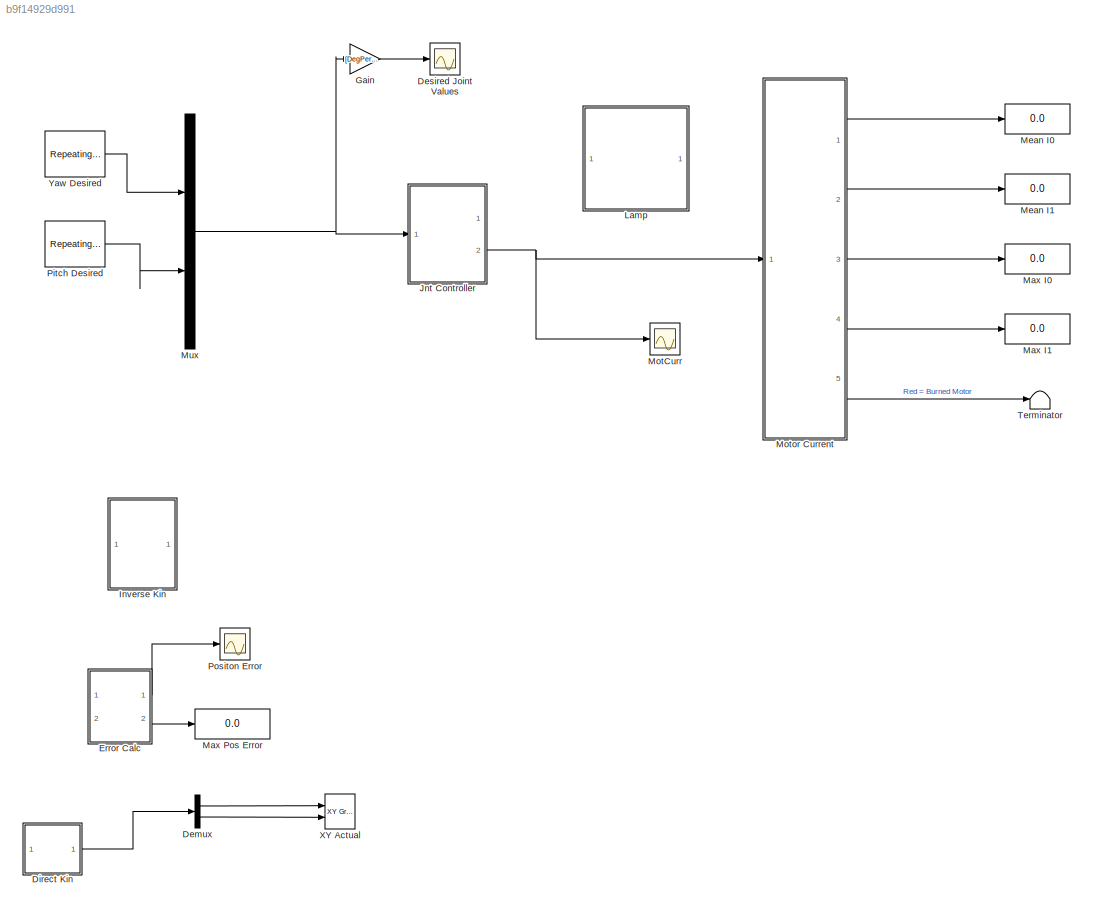
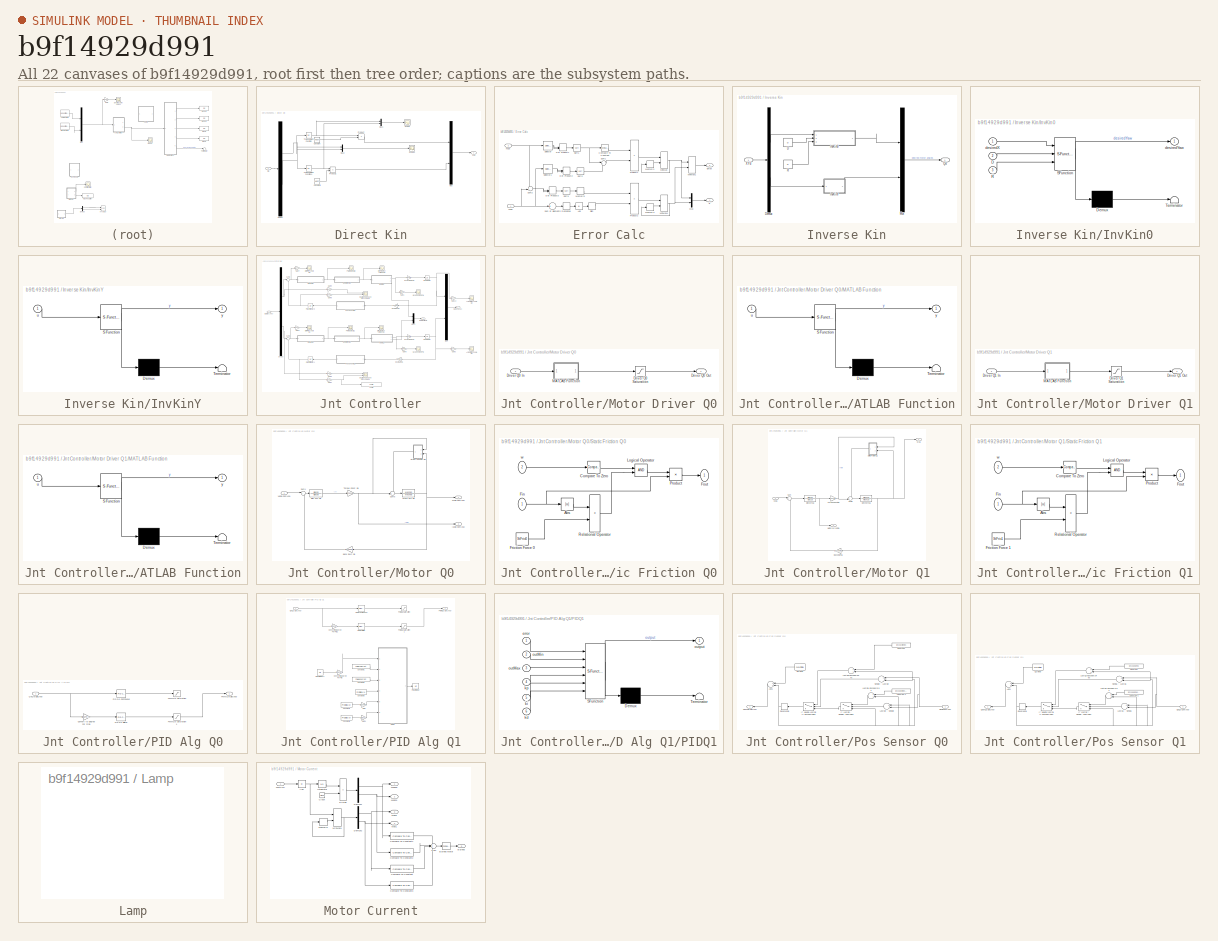
[diagram: thumbnail index - all 22 canvases of the model, root first then tree order]
MODEL slx_b9f14929d991
KIND model
CONFIG AbsTol = auto
CONFIG EnableMultiTasking = on
CONFIG FixedStep = 1e-5
CONFIG InitFcn = CONSTANTS\nDEFAULT\nSystem\nControl
CONFIG MaxStep = 1e-5
CONFIG MinStep = auto
CONFIG PreLoadFcn = CONSTANTS\nDEFAULT\nSystem\nControl
CONFIG RelTol = 1e-3
CONFIG SampleTimeConstraint = Unconstrained
CONFIG Solver = ode45
CONFIG SolverName = ode45
CONFIG StartTime = 0.0
CONFIG StopTime = 5
BLOCK [Demux] Demux
  Commented = on
  DisplayOption = bar
  Outputs = 2
  Ports = [1, 2]
BLOCK [Scope] Desired Joint Values
  NumInputPorts = 1
  Ports = [1]
  ScopeSpecificationString = Simulink.scopes.TimeScopeBlockCfg('CurrentConfiguration', extmgr.ConfigurationSet(extmgr.Configuration('Core','General UI',true),extmgr.Configuration('Core','Source UI',true),extmgr.Configuration('Sources','WiredSimulink',true,'DataLoggingVariableName','ScopeData1','DataLoggingLimitDataPoints',true,'DataLoggingSaveFormat','Array','DataLoggingDecimation','1','DataLoggingDecimateData',true),extmgr.C...<+1747ch>
BLOCK [SubSystem] Direct Kin
  Commented = on
  Ports = [1, 1]
  RequestExecContextInheritance = off
  Variant = off
BLOCK [Constant] Direct Kin/Constant
  Value = Height
BLOCK [Constant] Direct Kin/Constant1
  Value = Height
BLOCK [Demux] Direct Kin/Demux
  DisplayOption = bar
  Outputs = 2
  Ports = [1, 2]
BLOCK [Mux] Direct Kin/Mux
  DisplayOption = bar
  Inputs = 2
  Ports = [2, 1]
BLOCK [Mux] Direct Kin/Mux1
  DisplayOption = bar
  Inputs = 2
  Ports = [2, 1]
BLOCK [Mux] Direct Kin/Mux2
  DisplayOption = bar
  Inputs = 2
  Ports = [2, 1]
BLOCK [Product] Direct Kin/Product
  InputSameDT = off
  OutDataTypeStr = Inherit: Inherit via internal rule
  Ports = [2, 1]
  RndMeth = Floor
  SaturateOnIntegerOverflow = off
BLOCK [Product] Direct Kin/Product1
  InputSameDT = off
  OutDataTypeStr = Inherit: Inherit via internal rule
  Ports = [2, 1]
  RndMeth = Floor
  SaturateOnIntegerOverflow = off
BLOCK [Inport] Direct Kin/Qa
  IconDisplay = Port number
BLOCK [Scope] Direct Kin/Scope
  NumInputPorts = 1
  Ports = [1]
  ScopeSpecificationString = Simulink.scopes.TimeScopeBlockCfg('CurrentConfiguration', extmgr.ConfigurationSet(extmgr.Configuration('Core','General UI',true),extmgr.Configuration('Core','Source UI',true),extmgr.Configuration('Sources','WiredSimulink',true,'DataLoggingVariableName','ScopeData1'),extmgr.Configuration('Visuals','Time Domain',true,'SerializedDisplays',{struct('MinYLimReal','-0.84789','MaxYLimReal','0.09421','YLab...<+1433ch>
BLOCK [Scope] Direct Kin/Scope1
  NumInputPorts = 1
  Ports = [1]
  ScopeSpecificationString = Simulink.scopes.TimeScopeBlockCfg('CurrentConfiguration', extmgr.ConfigurationSet(extmgr.Configuration('Core','General UI',true),extmgr.Configuration('Core','Source UI',true),extmgr.Configuration('Sources','WiredSimulink',true,'DataLoggingVariableName','ScopeData3'),extmgr.Configuration('Visuals','Time Domain',true,'SerializedDisplays',{struct('MinYLimReal','-0.72658','MaxYLimReal','0.08073','YLab...<+1402ch>
BLOCK [Trigonometry] Direct Kin/Trigonometric Function
  Operator = tan
  Ports = [1, 1]
BLOCK [Trigonometry] Direct Kin/Trigonometric Function1
  Operator = tan
  Ports = [1, 1]
BLOCK [Outport] Direct Kin/XYa
  IconDisplay = Port number
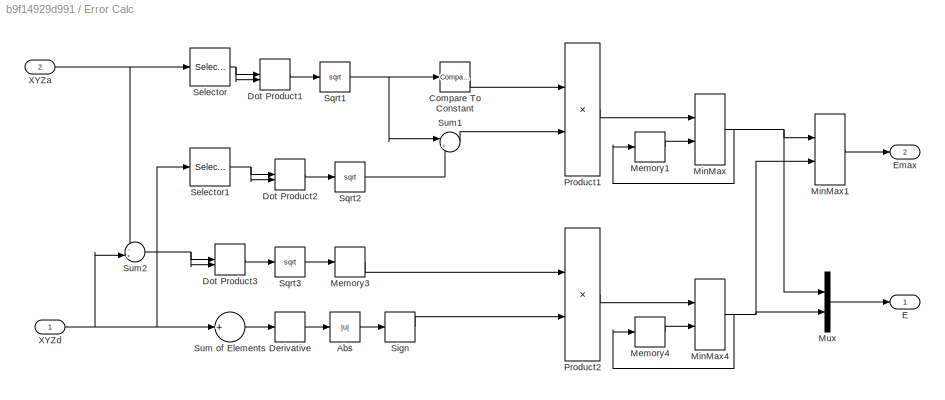
BLOCK [SubSystem] Error Calc
  Commented = on
  Ports = [2, 2]
  RequestExecContextInheritance = off
  Variant = off
BLOCK [Abs] Error Calc/Abs
  SaturateOnIntegerOverflow = off
BLOCK [Reference] Error Calc/Compare To Constant  REF=simulink/Logic and Bit
Operations/Compare
To Constant
  Ports = [1, 1]
  SourceBlock = simulink/Logic and Bit\nOperations/Compare\nTo Constant
  SourceProductBaseCode = SL
  SourceProductName = Simulink
  SourceType = Compare To Constant
BLOCK [Derivative] Error Calc/Derivative
BLOCK [DotProduct] Error Calc/Dot Product1
  OutDataTypeStr = Inherit: Inherit via internal rule
BLOCK [DotProduct] Error Calc/Dot Product2
  OutDataTypeStr = Inherit: Inherit via internal rule
BLOCK [DotProduct] Error Calc/Dot Product3
  OutDataTypeStr = Inherit: Inherit via internal rule
BLOCK [Outport] Error Calc/E
  IconDisplay = Port number
BLOCK [Outport] Error Calc/Emax
  IconDisplay = Port number
  Port = 2
BLOCK [Memory] Error Calc/Memory1
BLOCK [Memory] Error Calc/Memory3
BLOCK [Memory] Error Calc/Memory4
BLOCK [MinMax] Error Calc/MinMax
  Function = max
  InputSameDT = off
  Inputs = 2
  Ports = [2, 1]
  SaturateOnIntegerOverflow = off
BLOCK [MinMax] Error Calc/MinMax1
  Function = max
  InputSameDT = off
  Inputs = 2
  Ports = [2, 1]
  SaturateOnIntegerOverflow = off
BLOCK [MinMax] Error Calc/MinMax4
  Function = max
  InputSameDT = off
  Inputs = 2
  Ports = [2, 1]
  SaturateOnIntegerOverflow = off
BLOCK [Mux] Error Calc/Mux
  DisplayOption = bar
  Inputs = 2
  Ports = [2, 1]
BLOCK [Product] Error Calc/Product1
  InputSameDT = off
  OutDataTypeStr = Inherit: Inherit via internal rule
  Ports = [2, 1]
  RndMeth = Floor
  SaturateOnIntegerOverflow = off
BLOCK [Product] Error Calc/Product2
  InputSameDT = off
  OutDataTypeStr = Inherit: Inherit via internal rule
  Ports = [2, 1]
  RndMeth = Floor
  SaturateOnIntegerOverflow = off
BLOCK [Selector] Error Calc/Selector
  IndexOptions = Index vector (dialog)
  Indices = [1 2]
  InputPortWidth = 2
  OutputSizes = 1
  Ports = [1, 1]
BLOCK [Selector] Error Calc/Selector1
  IndexOptions = Index vector (dialog)
  Indices = [1 2]
  InputPortWidth = 2
  OutputSizes = 1
  Ports = [1, 1]
BLOCK [Signum] Error Calc/Sign
BLOCK [Sqrt] Error Calc/Sqrt1
BLOCK [Sqrt] Error Calc/Sqrt2
BLOCK [Sqrt] Error Calc/Sqrt3
BLOCK [Sum] Error Calc/Sum of Elements
  InputSameDT = off
  Inputs = +
  OutDataTypeStr = Inherit: Inherit via internal rule
  Ports = [1, 1]
  SaturateOnIntegerOverflow = off
BLOCK [Sum] Error Calc/Sum1
  IconShape = round
  InputSameDT = off
  Inputs = |+-
  OutDataTypeStr = Inherit: Inherit via internal rule
  Ports = [2, 1]
  SaturateOnIntegerOverflow = off
BLOCK [Sum] Error Calc/Sum2
  IconShape = round
  InputSameDT = off
  Inputs = -+|
  OutDataTypeStr = Inherit: Inherit via internal rule
  Ports = [2, 1]
  SaturateOnIntegerOverflow = off
BLOCK [Inport] Error Calc/XYZa
  IconDisplay = Port number
  Port = 2
BLOCK [Inport] Error Calc/XYZd
  IconDisplay = Port number
BLOCK [Gain] Gain
  Gain = [DegPerRad DegPerRad]
  OutDataTypeStr = Inherit: Inherit via internal rule
  ParamDataTypeStr = Inherit: Inherit via internal rule
  SaturateOnIntegerOverflow = off
BLOCK [SubSystem] Inverse Kin
  Commented = through
  Ports = [1, 1]
  RequestExecContextInheritance = off
  Variant = off
BLOCK [Constant] Inverse Kin/D
  Value = D
BLOCK [Demux] Inverse Kin/Demux
  DisplayOption = bar
  Outputs = 2
  Ports = [1, 2]
BLOCK [SubSystem] Inverse Kin/InvKin0
  ErrorFcn = Stateflow.Translate.translate
  PermitHierarchicalResolution = ExplicitOnly
  Ports = [3, 1]
  RequestExecContextInheritance = off
  SFBlockType = MATLAB Function
  TreatAsAtomicUnit = on
  Variant = off
BLOCK [Demux] Inverse Kin/InvKin0/ Demux 
  Outputs = 1
  Ports = [1, 1]
BLOCK [S-Function] Inverse Kin/InvKin0/ SFunction 
  EnableBusSupport = on
  FunctionName = sf_sfun
  PortCounts = [3 2]
  Ports = [3, 2]
  SFcnIsStateOwnerBlock = off
  SFunctionDeploymentMode = off
  Tag = Stateflow S-Function printer 4
BLOCK [Terminator] Inverse Kin/InvKin0/ Terminator 
BLOCK [Inport] Inverse Kin/InvKin0/D
  IconDisplay = Port number
  Port = 2
BLOCK [Inport] Inverse Kin/InvKin0/R
  IconDisplay = Port number
  Port = 3
BLOCK [Inport] Inverse Kin/InvKin0/desiredX
  IconDisplay = Port number
BLOCK [Outport] Inverse Kin/InvKin0/desiredYaw
  IconDisplay = Port number
BLOCK [SubSystem] Inverse Kin/InvKinY
  ErrorFcn = Stateflow.Translate.translate
  PermitHierarchicalResolution = ExplicitOnly
  Ports = [1, 1]
  RequestExecContextInheritance = off
  SFBlockType = MATLAB Function
  TreatAsAtomicUnit = on
  Variant = off
BLOCK [Demux] Inverse Kin/InvKinY/ Demux 
  Outputs = 1
  Ports = [1, 1]
BLOCK [S-Function] Inverse Kin/InvKinY/ SFunction 
  EnableBusSupport = on
  FunctionName = sf_sfun
  PortCounts = [1 2]
  Ports = [1, 2]
  SFcnIsStateOwnerBlock = off
  SFunctionDeploymentMode = off
  Tag = Stateflow S-Function printer 5
BLOCK [Terminator] Inverse Kin/InvKinY/ Terminator 
BLOCK [Inport] Inverse Kin/InvKinY/u
  IconDisplay = Port number
BLOCK [Outport] Inverse Kin/InvKinY/y
  IconDisplay = Port number
BLOCK [Mux] Inverse Kin/Mux
  DisplayOption = bar
  Inputs = 2
  Ports = [2, 1]
BLOCK [Outport] Inverse Kin/Qd
  IconDisplay = Port number
BLOCK [Constant] Inverse Kin/R
  Value = R
BLOCK [Inport] Inverse Kin/XYd
  IconDisplay = Port number
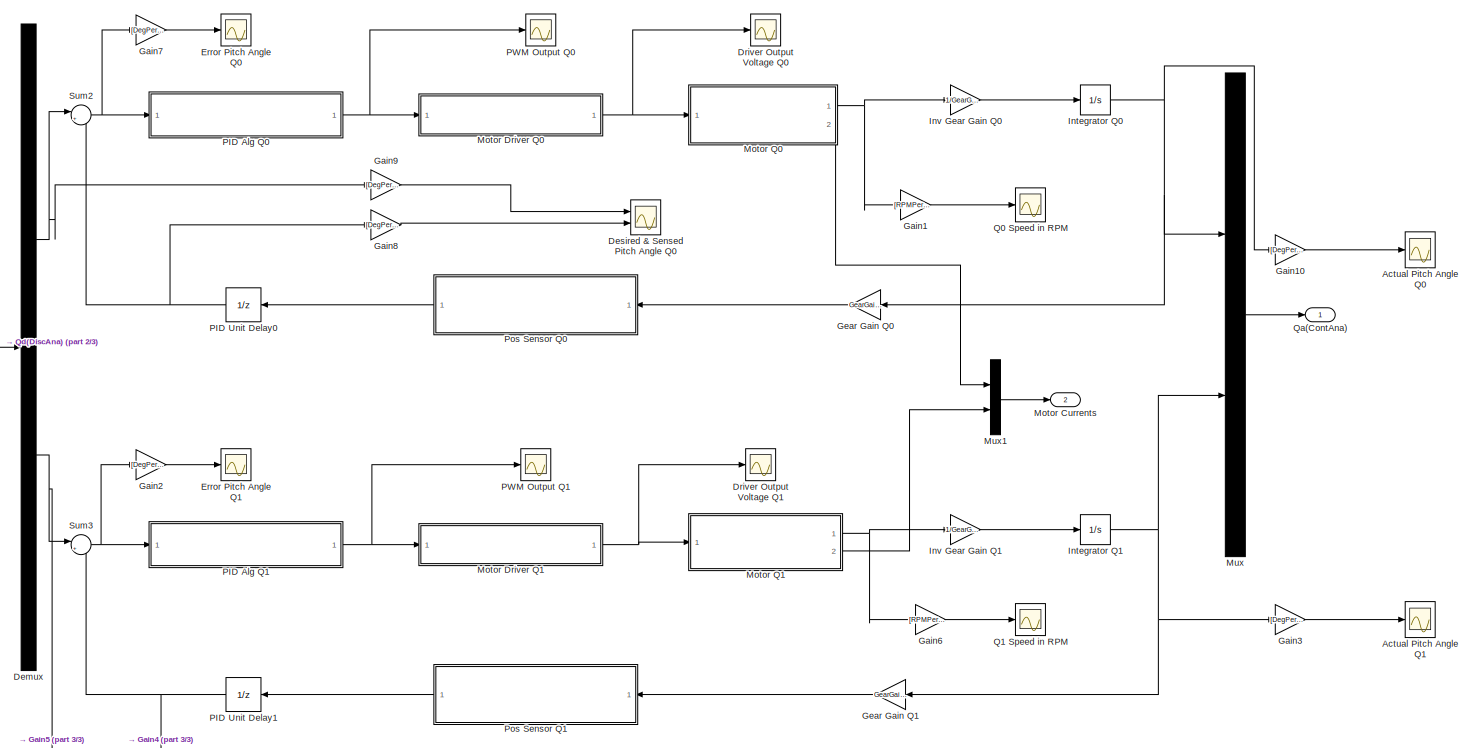
[diagram: Jnt Controller - part 1/3, most of the canvas]
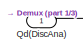
[diagram: Jnt Controller - part 2/3, middle left region]
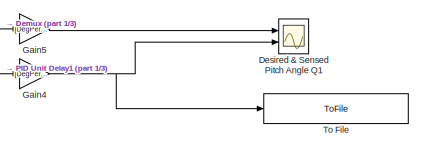
[diagram: Jnt Controller - part 3/3, bottom center region]
BLOCK [SubSystem] Jnt Controller
  Ports = [1, 2]
  RequestExecContextInheritance = off
  Variant = off
BLOCK [Scope] Jnt Controller/Actual Pitch Angle Q0
  NumInputPorts = 1
  Ports = [1]
  ScopeSpecificationString = Simulink.scopes.TimeScopeBlockCfg('CurrentConfiguration', extmgr.ConfigurationSet(extmgr.Configuration('Core','General UI',true),extmgr.Configuration('Core','Source UI',true),extmgr.Configuration('Sources','WiredSimulink',true,'DataLoggingVariableName','ScopeData5'),extmgr.Configuration('Visuals','Time Domain',true,'SerializedDisplays',{struct('MinYLimReal','-49.50275','MaxYLimReal','123.46933','Y...<+1424ch>
BLOCK [Scope] Jnt Controller/Actual Pitch Angle Q1
  NumInputPorts = 1
  Ports = [1]
  ScopeSpecificationString = Simulink.scopes.TimeScopeBlockCfg('CurrentConfiguration', extmgr.ConfigurationSet(extmgr.Configuration('Core','General UI',true),extmgr.Configuration('Core','Source UI',true),extmgr.Configuration('Sources','WiredSimulink',true,'DataLoggingVariableName','ScopeData1'),extmgr.Configuration('Visuals','Time Domain',true,'SerializedDisplays',{struct('MinYLimReal','-49.50275','MaxYLimReal','123.46933','Y...<+1424ch>
BLOCK [Demux] Jnt Controller/Demux
  DisplayOption = bar
  Outputs = 2
  Ports = [1, 2]
BLOCK [Scope] Jnt Controller/Desired & Sensed Pitch Angle Q0
  NumInputPorts = 2
  Ports = [2]
  ScopeSpecificationString = Simulink.scopes.TimeScopeBlockCfg('CurrentConfiguration', extmgr.ConfigurationSet(extmgr.Configuration('Core','General UI',true),extmgr.Configuration('Core','Source UI',true),extmgr.Configuration('Sources','WiredSimulink',true,'DataLoggingVariableName','ScopeData4'),extmgr.Configuration('Visuals','Time Domain',true,'SerializedDisplays',{struct('MinYLimReal','-12.6','MaxYLimReal','113.4','YLabelRea...<+1499ch>
BLOCK [Scope] Jnt Controller/Desired & Sensed Pitch Angle Q1
  NumInputPorts = 2
  Ports = [2]
  ScopeSpecificationString = Simulink.scopes.TimeScopeBlockCfg('CurrentConfiguration', extmgr.ConfigurationSet(extmgr.Configuration('Core','General UI',true),extmgr.Configuration('Core','Source UI',true),extmgr.Configuration('Sources','WiredSimulink',true,'DataLoggingVariableName','ScopeData2'),extmgr.Configuration('Visuals','Time Domain',true,'SerializedDisplays',{struct('MinYLimReal','-32.9625','MaxYLimReal','41.39679','YLa...<+1517ch>
BLOCK [Scope] Jnt Controller/Driver Output Voltage Q0
  NumInputPorts = 1
  Ports = [1]
  ScopeSpecificationString = Simulink.scopes.TimeScopeBlockCfg('CurrentConfiguration', extmgr.ConfigurationSet(extmgr.Configuration('Core','General UI',true),extmgr.Configuration('Core','Source UI',true),extmgr.Configuration('Sources','WiredSimulink',true,'DataLoggingVariableName','ScopeData3'),extmgr.Configuration('Visuals','Time Domain',true,'SerializedDisplays',{struct('MinYLimReal','-1.41707','MaxYLimReal','12.75368','YLa...<+1475ch>
BLOCK [Scope] Jnt Controller/Driver Output Voltage Q1
  NumInputPorts = 1
  Ports = [1]
  ScopeSpecificationString = Simulink.scopes.TimeScopeBlockCfg('CurrentConfiguration', extmgr.ConfigurationSet(extmgr.Configuration('Core','General UI',true),extmgr.Configuration('Core','Source UI',true),extmgr.Configuration('Sources','WiredSimulink',true,'DataLoggingVariableName','ScopeData5'),extmgr.Configuration('Visuals','Time Domain',true,'SerializedDisplays',{struct('MinYLimReal','-14.17075','MaxYLimReal','14.17075','YL...<+1477ch>
BLOCK [Scope] Jnt Controller/Error Pitch Angle Q0
  NumInputPorts = 1
  Ports = [1]
  ScopeSpecificationString = Simulink.scopes.TimeScopeBlockCfg('CurrentConfiguration', extmgr.ConfigurationSet(extmgr.Configuration('Core','General UI',true),extmgr.Configuration('Core','Source UI',true),extmgr.Configuration('Sources','WiredSimulink',true,'DataLoggingVariableName','ScopeData1'),extmgr.Configuration('Visuals','Time Domain',true,'SerializedDisplays',{struct('MinYLimReal','-11452.2075','MaxYLimReal','103069.8675...<+1467ch>
BLOCK [Scope] Jnt Controller/Error Pitch Angle Q1
  NumInputPorts = 1
  Ports = [1]
  ScopeSpecificationString = Simulink.scopes.TimeScopeBlockCfg('CurrentConfiguration', extmgr.ConfigurationSet(extmgr.Configuration('Core','General UI',true),extmgr.Configuration('Core','Source UI',true),extmgr.Configuration('Sources','WiredSimulink',true,'DataLoggingVariableName','ScopeData3'),extmgr.Configuration('Visuals','Time Domain',true,'SerializedDisplays',{struct('MinYLimReal','-26.04875','MaxYLimReal','24.23875','YL...<+1445ch>
BLOCK [Gain] Jnt Controller/Gain1
  Gain = [RPMPerRadPSec]
  OutDataTypeStr = Inherit: Inherit via internal rule
  ParamDataTypeStr = Inherit: Inherit via internal rule
  SaturateOnIntegerOverflow = off
BLOCK [Gain] Jnt Controller/Gain10
  Gain = [DegPerRad]
  OutDataTypeStr = Inherit: Inherit via internal rule
  ParamDataTypeStr = Inherit: Inherit via internal rule
  SaturateOnIntegerOverflow = off
BLOCK [Gain] Jnt Controller/Gain2
  Gain = [DegPerRad]
  OutDataTypeStr = Inherit: Inherit via internal rule
  ParamDataTypeStr = Inherit: Inherit via internal rule
  SaturateOnIntegerOverflow = off
BLOCK [Gain] Jnt Controller/Gain3
  Gain = [DegPerRad]
  OutDataTypeStr = Inherit: Inherit via internal rule
  ParamDataTypeStr = Inherit: Inherit via internal rule
  SaturateOnIntegerOverflow = off
BLOCK [Gain] Jnt Controller/Gain4
  Gain = [DegPerRad]
  OutDataTypeStr = Inherit: Inherit via internal rule
  ParamDataTypeStr = Inherit: Inherit via internal rule
  SaturateOnIntegerOverflow = off
BLOCK [Gain] Jnt Controller/Gain5
  Gain = [DegPerRad]
  OutDataTypeStr = Inherit: Inherit via internal rule
  ParamDataTypeStr = Inherit: Inherit via internal rule
  SaturateOnIntegerOverflow = off
BLOCK [Gain] Jnt Controller/Gain6
  Gain = [RPMPerRadPSec]
  OutDataTypeStr = Inherit: Inherit via internal rule
  ParamDataTypeStr = Inherit: Inherit via internal rule
  SaturateOnIntegerOverflow = off
BLOCK [Gain] Jnt Controller/Gain7
  Gain = [DegPerRad]
  OutDataTypeStr = Inherit: Inherit via internal rule
  ParamDataTypeStr = Inherit: Inherit via internal rule
  SaturateOnIntegerOverflow = off
BLOCK [Gain] Jnt Controller/Gain8
  Gain = [DegPerRad]
  OutDataTypeStr = Inherit: Inherit via internal rule
  ParamDataTypeStr = Inherit: Inherit via internal rule
  SaturateOnIntegerOverflow = off
BLOCK [Gain] Jnt Controller/Gain9
  Gain = [DegPerRad]
  OutDataTypeStr = Inherit: Inherit via internal rule
  ParamDataTypeStr = Inherit: Inherit via internal rule
  SaturateOnIntegerOverflow = off
BLOCK [Gain] Jnt Controller/Gear Gain Q0
  Gain = GearGain0
  OutDataTypeStr = Inherit: Inherit via internal rule
  ParamDataTypeStr = Inherit: Inherit via internal rule
  SaturateOnIntegerOverflow = off
BLOCK [Gain] Jnt Controller/Gear Gain Q1
  Gain = GearGain1
  OutDataTypeStr = Inherit: Inherit via internal rule
  ParamDataTypeStr = Inherit: Inherit via internal rule
  SaturateOnIntegerOverflow = off
BLOCK [Integrator] Jnt Controller/Integrator Q0
  Ports = [1, 1]
BLOCK [Integrator] Jnt Controller/Integrator Q1
  Ports = [1, 1]
BLOCK [Gain] Jnt Controller/Inv Gear Gain Q0
  Gain = 1/GearGain0
  OutDataTypeStr = Inherit: Inherit via internal rule
  ParamDataTypeStr = Inherit: Inherit via internal rule
  SaturateOnIntegerOverflow = off
BLOCK [Gain] Jnt Controller/Inv Gear Gain Q1
  Gain = 1/GearGain1
  OutDataTypeStr = Inherit: Inherit via internal rule
  ParamDataTypeStr = Inherit: Inherit via internal rule
  SaturateOnIntegerOverflow = off
BLOCK [Outport] Jnt Controller/Motor Currents
  IconDisplay = Port number
  Port = 2
BLOCK [SubSystem] Jnt Controller/Motor Driver Q0
  Ports = [1, 1]
  RequestExecContextInheritance = off
  Variant = off
BLOCK [Inport] Jnt Controller/Motor Driver Q0/Driver Q0 In
  IconDisplay = Port number
BLOCK [Outport] Jnt Controller/Motor Driver Q0/Driver Q0 Out
  IconDisplay = Port number
BLOCK [Saturate] Jnt Controller/Motor Driver Q0/Driver Q0 Saturation
  InputPortMap = u0
  LowerLimit = 0
  Ports = [1, 1]
  UpperLimit = VDriverSat
BLOCK [SubSystem] Jnt Controller/Motor Driver Q0/MATLAB Function
  ErrorFcn = Stateflow.Translate.translate
  PermitHierarchicalResolution = ExplicitOnly
  Ports = [1, 1]
  RequestExecContextInheritance = off
  SFBlockType = MATLAB Function
  TreatAsAtomicUnit = on
  Variant = off
BLOCK [Demux] Jnt Controller/Motor Driver Q0/MATLAB Function/ Demux 
  Outputs = 1
  Ports = [1, 1]
BLOCK [S-Function] Jnt Controller/Motor Driver Q0/MATLAB Function/ SFunction 
  EnableBusSupport = on
  FunctionName = sf_sfun
  PortCounts = [1 2]
  Ports = [1, 2]
  SFcnIsStateOwnerBlock = off
  SFunctionDeploymentMode = off
  Tag = Stateflow S-Function printer 2
BLOCK [Terminator] Jnt Controller/Motor Driver Q0/MATLAB Function/ Terminator 
BLOCK [Inport] Jnt Controller/Motor Driver Q0/MATLAB Function/u
  IconDisplay = Port number
BLOCK [Outport] Jnt Controller/Motor Driver Q0/MATLAB Function/y
  IconDisplay = Port number
BLOCK [SubSystem] Jnt Controller/Motor Driver Q1
  Ports = [1, 1]
  RequestExecContextInheritance = off
  Variant = off
BLOCK [Inport] Jnt Controller/Motor Driver Q1/Driver Q1 In
  IconDisplay = Port number
BLOCK [Outport] Jnt Controller/Motor Driver Q1/Driver Q1 Out
  IconDisplay = Port number
BLOCK [Saturate] Jnt Controller/Motor Driver Q1/Driver Q1 Saturation
  InputPortMap = u0
  LowerLimit = -1*VDriverSat
  Ports = [1, 1]
  UpperLimit = VDriverSat
BLOCK [SubSystem] Jnt Controller/Motor Driver Q1/MATLAB Function
  ErrorFcn = Stateflow.Translate.translate
  PermitHierarchicalResolution = ExplicitOnly
  Ports = [1, 1]
  RequestExecContextInheritance = off
  SFBlockType = MATLAB Function
  TreatAsAtomicUnit = on
  Variant = off
BLOCK [Demux] Jnt Controller/Motor Driver Q1/MATLAB Function/ Demux 
  Outputs = 1
  Ports = [1, 1]
BLOCK [S-Function] Jnt Controller/Motor Driver Q1/MATLAB Function/ SFunction 
  EnableBusSupport = on
  FunctionName = sf_sfun
  PortCounts = [1 2]
  Ports = [1, 2]
  SFcnIsStateOwnerBlock = off
  SFunctionDeploymentMode = off
  Tag = Stateflow S-Function printer 1
BLOCK [Terminator] Jnt Controller/Motor Driver Q1/MATLAB Function/ Terminator 
BLOCK [Inport] Jnt Controller/Motor Driver Q1/MATLAB Function/u
  IconDisplay = Port number
BLOCK [Outport] Jnt Controller/Motor Driver Q1/MATLAB Function/y
  IconDisplay = Port number
BLOCK [SubSystem] Jnt Controller/Motor Q0
  Ports = [1, 2]
  RequestExecContextInheritance = off
  Variant = off
BLOCK [Gain] Jnt Controller/Motor Q0/Back EMF Q0
  Gain = BackEMF0
  OutDataTypeStr = Inherit: Inherit via internal rule
  ParamDataTypeStr = Inherit: Inherit via internal rule
  SaturateOnIntegerOverflow = off
BLOCK [TransferFcn] Jnt Controller/Motor Q0/Elec Dyn Q0
  Denominator = Elec0d
  Numerator = Elec0n
BLOCK [Outport] Jnt Controller/Motor Q0/IaQ0(ContAna)
  IconDisplay = Port number
  Port = 2
BLOCK [TransferFcn] Jnt Controller/Motor Q0/Mech Dyn Q0
  Denominator = Mech0d
  Numerator = Mech0n
BLOCK [SubSystem] Jnt Controller/Motor Q0/Static Friction Q0
  Ports = [2, 1]
  RequestExecContextInheritance = off
  Variant = off
BLOCK [Abs] Jnt Controller/Motor Q0/Static Friction Q0/Abs
  SaturateOnIntegerOverflow = off
BLOCK [Reference] Jnt Controller/Motor Q0/Static Friction Q0/Compare To Zero  REF=simulink/Logic and Bit
Operations/Compare
To Zero
  Ports = [1, 1]
  SourceBlock = simulink/Logic and Bit\nOperations/Compare\nTo Zero
  SourceProductBaseCode = SL
  SourceProductName = Simulink
  SourceType = Compare To Zero
BLOCK [Inport] Jnt Controller/Motor Q0/Static Friction Q0/Fin
  IconDisplay = Port number
BLOCK [Outport] Jnt Controller/Motor Q0/Static Friction Q0/Fout
  IconDisplay = Port number
BLOCK [Constant] Jnt Controller/Motor Q0/Static Friction Q0/Friction Force 0
  Value = StFric0
BLOCK [Logic] Jnt Controller/Motor Q0/Static Friction Q0/Logical Operator
  AllPortsSameDT = off
  OutDataTypeStr = boolean
  Ports = [2, 1]
BLOCK [Product] Jnt Controller/Motor Q0/Static Friction Q0/Product
  InputSameDT = off
  OutDataTypeStr = Inherit: Inherit via internal rule
  Ports = [2, 1]
  RndMeth = Floor
  SaturateOnIntegerOverflow = off
BLOCK [RelationalOperator] Jnt Controller/Motor Q0/Static Friction Q0/Relational Operator
  InputSameDT = off
  Operator = <
  OutDataTypeStr = boolean
  Ports = [2, 1]
  RndMeth = Simplest
BLOCK [Inport] Jnt Controller/Motor Q0/Static Friction Q0/w
  IconDisplay = Port number
  Port = 2
BLOCK [Sum] Jnt Controller/Motor Q0/Sum1
  IconShape = round
  InputSameDT = off
  Inputs = |+-
  OutDataTypeStr = Inherit: Inherit via internal rule
  Ports = [2, 1]
  SaturateOnIntegerOverflow = off
BLOCK [Sum] Jnt Controller/Motor Q0/Sum5
  IconShape = round
  InputSameDT = off
  Inputs = -+|
  OutDataTypeStr = Inherit: Inherit via internal rule
  Ports = [2, 1]
  SaturateOnIntegerOverflow = off
BLOCK [Gain] Jnt Controller/Motor Q0/Torque Const Q0
  Gain = TConst0
  OutDataTypeStr = Inherit: Inherit via internal rule
  ParamDataTypeStr = Inherit: Inherit via internal rule
  SaturateOnIntegerOverflow = off
BLOCK [Inport] Jnt Controller/Motor Q0/VaQ0(ContAna)
  IconDisplay = Port number
BLOCK [Outport] Jnt Controller/Motor Q0/WQ0(ContAna)
  IconDisplay = Port number
BLOCK [SubSystem] Jnt Controller/Motor Q1
  Ports = [1, 2]
  RequestExecContextInheritance = off
  Variant = off
BLOCK [Gain] Jnt Controller/Motor Q1/Back EMF Q1
  Gain = BackEMF1
  OutDataTypeStr = Inherit: Inherit via internal rule
  ParamDataTypeStr = Inherit: Inherit via internal rule
  SaturateOnIntegerOverflow = off
BLOCK [TransferFcn] Jnt Controller/Motor Q1/Elec Dyn Q1
  Denominator = Elec1d
  Numerator = Elec1n
BLOCK [TransferFcn] Jnt Controller/Motor Q1/Mech Dyn Q1
  Denominator = Mech1d
  Numerator = Mech1n
BLOCK [Outport] Jnt Controller/Motor Q1/Motor current Q1
  IconDisplay = Port number
  Port = 2
BLOCK [SubSystem] Jnt Controller/Motor Q1/Static Friction Q1
  Ports = [2, 1]
  RequestExecContextInheritance = off
  Variant = off
BLOCK [Abs] Jnt Controller/Motor Q1/Static Friction Q1/Abs
  SaturateOnIntegerOverflow = off
BLOCK [Reference] Jnt Controller/Motor Q1/Static Friction Q1/Compare To Zero  REF=simulink/Logic and Bit
Operations/Compare
To Zero
  Ports = [1, 1]
  SourceBlock = simulink/Logic and Bit\nOperations/Compare\nTo Zero
  SourceProductBaseCode = SL
  SourceProductName = Simulink
  SourceType = Compare To Zero
BLOCK [Inport] Jnt Controller/Motor Q1/Static Friction Q1/Fin
  IconDisplay = Port number
BLOCK [Outport] Jnt Controller/Motor Q1/Static Friction Q1/Fout
  IconDisplay = Port number
BLOCK [Constant] Jnt Controller/Motor Q1/Static Friction Q1/Friction Force 1
  Value = StFric1
BLOCK [Logic] Jnt Controller/Motor Q1/Static Friction Q1/Logical Operator
  AllPortsSameDT = off
  OutDataTypeStr = boolean
  Ports = [2, 1]
BLOCK [Product] Jnt Controller/Motor Q1/Static Friction Q1/Product
  InputSameDT = off
  OutDataTypeStr = Inherit: Inherit via internal rule
  Ports = [2, 1]
  RndMeth = Floor
  SaturateOnIntegerOverflow = off
BLOCK [RelationalOperator] Jnt Controller/Motor Q1/Static Friction Q1/Relational Operator
  InputSameDT = off
  Operator = <
  OutDataTypeStr = boolean
  Ports = [2, 1]
  RndMeth = Simplest
BLOCK [Inport] Jnt Controller/Motor Q1/Static Friction Q1/w
  IconDisplay = Port number
  Port = 2
BLOCK [Sum] Jnt Controller/Motor Q1/Sum
  IconShape = round
  InputSameDT = off
  Inputs = |+-
  OutDataTypeStr = Inherit: Inherit via internal rule
  Ports = [2, 1]
  SaturateOnIntegerOverflow = off
BLOCK [Sum] Jnt Controller/Motor Q1/Sum5
  IconShape = round
  InputSameDT = off
  Inputs = -+|
  OutDataTypeStr = Inherit: Inherit via internal rule
  Ports = [2, 1]
  SaturateOnIntegerOverflow = off
BLOCK [Gain] Jnt Controller/Motor Q1/Torque Const Q1
  Gain = TConst1
  OutDataTypeStr = Inherit: Inherit via internal rule
  ParamDataTypeStr = Inherit: Inherit via internal rule
  SaturateOnIntegerOverflow = off
BLOCK [Inport] Jnt Controller/Motor Q1/Va Q1
  IconDisplay = Port number
BLOCK [Outport] Jnt Controller/Motor Q1/W Q1
  IconDisplay = Port number
BLOCK [Mux] Jnt Controller/Mux
  DisplayOption = bar
  Inputs = 2
  Ports = [2, 1]
BLOCK [Mux] Jnt Controller/Mux1
  DisplayOption = bar
  Inputs = 2
  Ports = [2, 1]
BLOCK [SubSystem] Jnt Controller/PID Alg Q0
  Ports = [1, 1]
  RequestExecContextInheritance = off
  Variant = off
BLOCK [Gain] Jnt Controller/PID Alg Q0/Convert to Degree For PID0
  Gain = [DegPerRad]
  OutDataTypeStr = Inherit: Inherit via internal rule
  ParamDataTypeStr = Inherit: Inherit via internal rule
  SaturateOnIntegerOverflow = off
BLOCK [Reference] Jnt Controller/PID Alg Q0/PID Q0 Continuous  REF=simulink/Continuous/PID Controller
  Ports = [1, 1]
  SourceBlock = simulink/Continuous/PID Controller
  SourceProductBaseCode = SL
  SourceProductName = Simulink
  SourceType = PID 1dof
BLOCK [Reference] Jnt Controller/PID Alg Q0/PID Q0 Digital  REF=simulink/Continuous/PID Controller
  Ports = [1, 1]
  SourceBlock = simulink/Continuous/PID Controller
  SourceProductBaseCode = SL
  SourceProductName = Simulink
  SourceType = PID 1dof
BLOCK [Saturate] Jnt Controller/PID Alg Q0/PWMQ0 Saturation
  InputPortMap = u0
  LowerLimit = PWMLowerSat
  Ports = [1, 1]
  UpperLimit = PWMUpperSat
BLOCK [Saturate] Jnt Controller/PID Alg Q0/PWMQ0 Saturation1
  InputPortMap = u0
  LowerLimit = PWMLowerSat
  Ports = [1, 1]
  UpperLimit = PWMUpperSat
BLOCK [Outport] Jnt Controller/PID Alg Q0/PWMQ0(DiscAna)
  IconDisplay = Port number
BLOCK [Inport] Jnt Controller/PID Alg Q0/QeQ0(DiscAna)
  IconDisplay = Port number
BLOCK [SubSystem] Jnt Controller/PID Alg Q1
  Ports = [1, 1]
  RequestExecContextInheritance = off
  Variant = off
BLOCK [Constant] Jnt Controller/PID Alg Q1/Constant1
  Commented = on
  Value = PWMLowerSat
BLOCK [Constant] Jnt Controller/PID Alg Q1/Constant2
  Commented = on
  Value = PWMUpperSat
BLOCK [Constant] Jnt Controller/PID Alg Q1/Constant3
  Commented = on
  Value = PIDDig1(1)
BLOCK [Constant] Jnt Controller/PID Alg Q1/Constant4
  Value = PIDDig1(2)
BLOCK [Constant] Jnt Controller/PID Alg Q1/Constant5
  Value = PIDDig1(3)
BLOCK [Gain] Jnt Controller/PID Alg Q1/Convert to Degree For PID
  Commented = on
  Gain = [DegPerRad]
  OutDataTypeStr = Inherit: Inherit via internal rule
  ParamDataTypeStr = Inherit: Inherit via internal rule
  SaturateOnIntegerOverflow = off
BLOCK [Gain] Jnt Controller/PID Alg Q1/Convert to Degree For PID1
  Gain = [DegPerRad]
  OutDataTypeStr = Inherit: Inherit via internal rule
  ParamDataTypeStr = Inherit: Inherit via internal rule
  SaturateOnIntegerOverflow = off
BLOCK [Gain] Jnt Controller/PID Alg Q1/Gain
  Gain = PIDSampleTime
  OutDataTypeStr = Inherit: Inherit via internal rule
  ParamDataTypeStr = Inherit: Inherit via internal rule
  SaturateOnIntegerOverflow = off
BLOCK [Gain] Jnt Controller/PID Alg Q1/Gain1
  Gain = 1/PIDSampleTime
  OutDataTypeStr = Inherit: Inherit via internal rule
  ParamDataTypeStr = Inherit: Inherit via internal rule
  SaturateOnIntegerOverflow = off
BLOCK [Reference] Jnt Controller/PID Alg Q1/PID Q1 Continuous  REF=simulink/Continuous/PID Controller
  Ports = [1, 1]
  SourceBlock = simulink/Continuous/PID Controller
  SourceProductBaseCode = SL
  SourceProductName = Simulink
  SourceType = PID 1dof
BLOCK [Reference] Jnt Controller/PID Alg Q1/PID Q1 Digital  REF=simulink/Continuous/PID Controller
  Ports = [1, 1]
  SourceBlock = simulink/Continuous/PID Controller
  SourceProductBaseCode = SL
  SourceProductName = Simulink
  SourceType = PID 1dof
BLOCK [UnitDelay] Jnt Controller/PID Alg Q1/PID Unit Delay
  Commented = on
  InputProcessing = Elements as channels (sample based)
  SampleTime = PIDSampleTime
BLOCK [UnitDelay] Jnt Controller/PID Alg Q1/PID Unit Delay1
  Commented = on
  InputProcessing = Elements as channels (sample based)
  SampleTime = PIDSampleTime
BLOCK [SubSystem] Jnt Controller/PID Alg Q1/PIDQ1
  Commented = on
  ErrorFcn = Stateflow.Translate.translate
  PermitHierarchicalResolution = ExplicitOnly
  Ports = [6, 1]
  RequestExecContextInheritance = off
  SFBlockType = MATLAB Function
  TreatAsAtomicUnit = on
  Variant = off
BLOCK [Demux] Jnt Controller/PID Alg Q1/PIDQ1/ Demux 
  Outputs = 1
  Ports = [1, 1]
BLOCK [S-Function] Jnt Controller/PID Alg Q1/PIDQ1/ SFunction 
  EnableBusSupport = on
  FunctionName = sf_sfun
  PortCounts = [6 2]
  Ports = [6, 2]
  SFcnIsStateOwnerBlock = off
  SFunctionDeploymentMode = off
  Tag = Stateflow S-Function printer 3
BLOCK [Terminator] Jnt Controller/PID Alg Q1/PIDQ1/ Terminator 
BLOCK [Inport] Jnt Controller/PID Alg Q1/PIDQ1/error
  IconDisplay = Port number
BLOCK [Inport] Jnt Controller/PID Alg Q1/PIDQ1/kd
  IconDisplay = Port number
  Port = 6
BLOCK [Inport] Jnt Controller/PID Alg Q1/PIDQ1/ki
  IconDisplay = Port number
  Port = 5
BLOCK [Inport] Jnt Controller/PID Alg Q1/PIDQ1/kp
  IconDisplay = Port number
  Port = 4
BLOCK [Inport] Jnt Controller/PID Alg Q1/PIDQ1/outMax
  IconDisplay = Port number
  Port = 3
BLOCK [Inport] Jnt Controller/PID Alg Q1/PIDQ1/outMin
  IconDisplay = Port number
  Port = 2
BLOCK [Outport] Jnt Controller/PID Alg Q1/PIDQ1/output
  IconDisplay = Port number
BLOCK [Saturate] Jnt Controller/PID Alg Q1/PWMQ1 Saturation
  InputPortMap = u0
  LowerLimit = PWMLowerSat
  Ports = [1, 1]
  UpperLimit = PWMUpperSat
BLOCK [Saturate] Jnt Controller/PID Alg Q1/PWMQ1 Saturation1
  InputPortMap = u0
  LowerLimit = PWMLowerSat
  Ports = [1, 1]
  UpperLimit = PWMUpperSat
BLOCK [Outport] Jnt Controller/PID Alg Q1/PWMQ1(DiscAna)
  IconDisplay = Port number
BLOCK [Inport] Jnt Controller/PID Alg Q1/QeQ1(DiscAna)
  IconDisplay = Port number
BLOCK [UnitDelay] Jnt Controller/PID Unit Delay0
  InputProcessing = Elements as channels (sample based)
  SampleTime = PIDSampleTime
BLOCK [UnitDelay] Jnt Controller/PID Unit Delay1
  InputProcessing = Elements as channels (sample based)
  SampleTime = PIDSampleTime
BLOCK [Scope] Jnt Controller/PWM Output Q0
  NumInputPorts = 1
  Ports = [1]
  ScopeSpecificationString = Simulink.scopes.TimeScopeBlockCfg('CurrentConfiguration', extmgr.ConfigurationSet(extmgr.Configuration('Core','General UI',true),extmgr.Configuration('Core','Source UI',true),extmgr.Configuration('Sources','WiredSimulink',true,'DataLoggingVariableName','ScopeData2'),extmgr.Configuration('Visuals','Time Domain',true,'SerializedDisplays',{struct('MinYLimReal','-1278.75','MaxYLimReal','1278.75','YLab...<+1514ch>
BLOCK [Scope] Jnt Controller/PWM Output Q1
  NumInputPorts = 1
  Ports = [1]
  ScopeSpecificationString = Simulink.scopes.TimeScopeBlockCfg('CurrentConfiguration', extmgr.ConfigurationSet(extmgr.Configuration('Core','General UI',true),extmgr.Configuration('Core','Source UI',true),extmgr.Configuration('Sources','WiredSimulink',true,'DataLoggingVariableName','ScopeData3'),extmgr.Configuration('Visuals','Time Domain',true,'SerializedDisplays',{struct('MinYLimReal','-1278.75','MaxYLimReal','1278.75','YLab...<+1514ch>
BLOCK [SubSystem] Jnt Controller/Pos Sensor Q0
  Ports = [1, 1]
  RequestExecContextInheritance = off
  Variant = off
BLOCK [Sum] Jnt Controller/Pos Sensor Q0/Add1
  InputSameDT = off
  OutDataTypeStr = Inherit: Inherit via internal rule
  Ports = [2, 1]
  SaturateOnIntegerOverflow = off
BLOCK [Constant] Jnt Controller/Pos Sensor Q0/Constant
  Value = Encoder0Res
BLOCK [Constant] Jnt Controller/Pos Sensor Q0/Constant1
  Value = Encoder0Res*(-1)
BLOCK [Switch] Jnt Controller/Pos Sensor Q0/If LastQ0 - NewQ0>= Encoder0Res
  InputSameDT = off
  SaturateOnIntegerOverflow = off
  Threshold = Encoder0Res
BLOCK [Switch] Jnt Controller/Pos Sensor Q0/If NewQ0-LastQ0 >= Encoder0Res
  InputSameDT = off
  SaturateOnIntegerOverflow = off
  Threshold = Encoder0Res
BLOCK [Sum] Jnt Controller/Pos Sensor Q0/LastQ0 - NewQ0
  InputSameDT = off
  Inputs = +-
  OutDataTypeStr = Inherit: Inherit via internal rule
  Ports = [2, 1]
  SaturateOnIntegerOverflow = off
BLOCK [Sum] Jnt Controller/Pos Sensor Q0/LastQ0+Encoder0Res
  InputSameDT = off
  OutDataTypeStr = Inherit: Inherit via internal rule
  Ports = [2, 1]
  SaturateOnIntegerOverflow = off
BLOCK [Sum] Jnt Controller/Pos Sensor Q0/LastQ0-Encoder0res
  InputSameDT = off
  OutDataTypeStr = Inherit: Inherit via internal rule
  Ports = [2, 1]
  SaturateOnIntegerOverflow = off
BLOCK [Sum] Jnt Controller/Pos Sensor Q0/NewQ0 - LastQ0
  InputSameDT = off
  Inputs = +-
  OutDataTypeStr = Inherit: Inherit via internal rule
  Ports = [2, 1]
  SaturateOnIntegerOverflow = off
BLOCK [Constant] Jnt Controller/Pos Sensor Q0/Q0Initial
  Value = Q0Initial
BLOCK [Inport] Jnt Controller/Pos Sensor Q0/QaQ0ContAna)
  IconDisplay = Port number
BLOCK [Outport] Jnt Controller/Pos Sensor Q0/QsenQ0(DiscAna)
  IconDisplay = Port number
BLOCK [Memory] Jnt Controller/Pos Sensor Q0/ResetedQ0
BLOCK [SubSystem] Jnt Controller/Pos Sensor Q1
  Ports = [1, 1]
  RequestExecContextInheritance = off
  Variant = off
BLOCK [Sum] Jnt Controller/Pos Sensor Q1/Add1
  InputSameDT = off
  OutDataTypeStr = Inherit: Inherit via internal rule
  Ports = [2, 1]
  SaturateOnIntegerOverflow = off
BLOCK [Constant] Jnt Controller/Pos Sensor Q1/Constant
  Value = Encoder1Res
BLOCK [Constant] Jnt Controller/Pos Sensor Q1/Constant1
  Value = Encoder1Res*(-1)
BLOCK [Switch] Jnt Controller/Pos Sensor Q1/If LastQ1 - NewQ1>= Encoder1Res
  InputSameDT = off
  SaturateOnIntegerOverflow = off
  Threshold = Encoder1Res
BLOCK [Switch] Jnt Controller/Pos Sensor Q1/If NewQ1-LastQ1 >= Encoder1Res
  InputSameDT = off
  SaturateOnIntegerOverflow = off
  Threshold = Encoder1Res
BLOCK [Sum] Jnt Controller/Pos Sensor Q1/LastQ1 - NewQ1
  InputSameDT = off
  Inputs = +-
  OutDataTypeStr = Inherit: Inherit via internal rule
  Ports = [2, 1]
  SaturateOnIntegerOverflow = off
BLOCK [Sum] Jnt Controller/Pos Sensor Q1/LastQ1+Encoder1Res
  InputSameDT = off
  OutDataTypeStr = Inherit: Inherit via internal rule
  Ports = [2, 1]
  SaturateOnIntegerOverflow = off
BLOCK [Sum] Jnt Controller/Pos Sensor Q1/LastQ1-Encoder1res
  InputSameDT = off
  OutDataTypeStr = Inherit: Inherit via internal rule
  Ports = [2, 1]
  SaturateOnIntegerOverflow = off
BLOCK [Sum] Jnt Controller/Pos Sensor Q1/NewQ1 - LastQ1
  InputSameDT = off
  Inputs = +-
  OutDataTypeStr = Inherit: Inherit via internal rule
  Ports = [2, 1]
  SaturateOnIntegerOverflow = off
BLOCK [Constant] Jnt Controller/Pos Sensor Q1/Q1Initial
  Value = Q1Initial
BLOCK [Inport] Jnt Controller/Pos Sensor Q1/QaQ1(ContAna)
  IconDisplay = Port number
BLOCK [Outport] Jnt Controller/Pos Sensor Q1/QsenQ1(DiscAna)
  IconDisplay = Port number
BLOCK [Memory] Jnt Controller/Pos Sensor Q1/ResetedQ1
BLOCK [Scope] Jnt Controller/Q0 Speed in RPM
  NumInputPorts = 1
  Ports = [1]
  ScopeSpecificationString = Simulink.scopes.TimeScopeBlockCfg('CurrentConfiguration', extmgr.ConfigurationSet(extmgr.Configuration('Core','General UI',true),extmgr.Configuration('Core','Source UI',true),extmgr.Configuration('Sources','WiredSimulink',true,'DataLoggingVariableName','ScopeData1'),extmgr.Configuration('Visuals','Time Domain',true,'SerializedDisplays',{struct('MinYLimReal','-99.3419','MaxYLimReal','894.0771','YLa...<+1482ch>
BLOCK [Scope] Jnt Controller/Q1 Speed in RPM
  NumInputPorts = 1
  Ports = [1]
  ScopeSpecificationString = Simulink.scopes.TimeScopeBlockCfg('CurrentConfiguration', extmgr.ConfigurationSet(extmgr.Configuration('Core','General UI',true),extmgr.Configuration('Core','Source UI',true),extmgr.Configuration('Sources','WiredSimulink',true,'DataLoggingVariableName','ScopeData1'),extmgr.Configuration('Visuals','Time Domain',true,'SerializedDisplays',{struct('MinYLimReal','-344.65336','MaxYLimReal','3101.88025',...<+1801ch>
BLOCK [Outport] Jnt Controller/Qa(ContAna)
  IconDisplay = Port number
BLOCK [Inport] Jnt Controller/Qd(DiscAna)
  IconDisplay = Port number
BLOCK [Sum] Jnt Controller/Sum2
  IconShape = round
  InputSameDT = off
  Inputs = |+-
  OutDataTypeStr = Inherit: Inherit via internal rule
  Ports = [2, 1]
  SaturateOnIntegerOverflow = off
BLOCK [Sum] Jnt Controller/Sum3
  IconShape = round
  InputSameDT = off
  Inputs = |+-
  OutDataTypeStr = Inherit: Inherit via internal rule
  Ports = [2, 1]
  SaturateOnIntegerOverflow = off
BLOCK [ToFile] Jnt Controller/To File
  Filename = actualPitchSimulink.mat
  MatrixName = actualPitchSimulink
  Ports = [1]
  SampleTime = 0.004
BLOCK [SubSystem] Lamp
  DialogController = hmiCreateDDGDialog
  IsWebBlock = on
  MaskHideContents = on
  Ports = []
  RequestExecContextInheritance = off
  Variant = off
BLOCK [Display] Max I0
  Decimation = 1
  Ports = [1]
BLOCK [Display] Max I1
  Decimation = 1
  Ports = [1]
BLOCK [Display] Max Pos Error
  Commented = on
  Decimation = 1
  Ports = [1]
BLOCK [Display] Mean I0
  Decimation = 1
  Ports = [1]
BLOCK [Display] Mean I1
  Decimation = 1
  Ports = [1]
BLOCK [Scope] MotCurr
  NumInputPorts = 1
  Ports = [1]
  ScopeSpecificationString = Simulink.scopes.TimeScopeBlockCfg('CurrentConfiguration', extmgr.ConfigurationSet(extmgr.Configuration('Core','General UI',true),extmgr.Configuration('Core','Source UI',true),extmgr.Configuration('Sources','WiredSimulink',true,'DataLoggingVariableName','ScopeData2','DataLoggingSaveFormat','Array','DataLoggingDecimation','1','DataLoggingDecimateData',true),extmgr.Configuration('Visuals','Time Domai...<+1787ch>
BLOCK [SubSystem] Motor Current
  Ports = [1, 5]
  RequestExecContextInheritance = off
  Variant = off
BLOCK [Abs] Motor Current/Abs
  SaturateOnIntegerOverflow = off
BLOCK [Outport] Motor Current/Burned
  IconDisplay = Port number
  Port = 5
BLOCK [Reference] Motor Current/Burned Motor  REF=simulink/Logic and Bit
Operations/Compare
To Zero
  Ports = [1, 1]
  SourceBlock = simulink/Logic and Bit\nOperations/Compare\nTo Zero
  SourceProductBaseCode = SL
  SourceProductName = Simulink
  SourceType = Compare To Zero
BLOCK [Clock] Motor Current/Clock
BLOCK [Reference] Motor Current/Compare To Constant  REF=simulink/Logic and Bit
Operations/Compare
To Constant
  Ports = [1, 1]
  SourceBlock = simulink/Logic and Bit\nOperations/Compare\nTo Constant
  SourceProductBaseCode = SL
  SourceProductName = Simulink
  SourceType = Compare To Constant
BLOCK [Reference] Motor Current/Compare To Constant1  REF=simulink/Logic and Bit
Operations/Compare
To Constant
  Ports = [1, 1]
  SourceBlock = simulink/Logic and Bit\nOperations/Compare\nTo Constant
  SourceProductBaseCode = SL
  SourceProductName = Simulink
  SourceType = Compare To Constant
BLOCK [Reference] Motor Current/Compare To Constant2  REF=simulink/Logic and Bit
Operations/Compare
To Constant
  Ports = [1, 1]
  SourceBlock = simulink/Logic and Bit\nOperations/Compare\nTo Constant
  SourceProductBaseCode = SL
  SourceProductName = Simulink
  SourceType = Compare To Constant
BLOCK [Reference] Motor Current/Compare To Constant3  REF=simulink/Logic and Bit
Operations/Compare
To Constant
  Ports = [1, 1]
  SourceBlock = simulink/Logic and Bit\nOperations/Compare\nTo Constant
  SourceProductBaseCode = SL
  SourceProductName = Simulink
  SourceType = Compare To Constant
BLOCK [Demux] Motor Current/Demux1
  DisplayOption = bar
  Outputs = 2
  Ports = [1, 2]
BLOCK [Demux] Motor Current/Demux2
  DisplayOption = bar
  Outputs = 2
  Ports = [1, 2]
BLOCK [Product] Motor Current/Divide
  InputSameDT = off
  Inputs = */
  OutDataTypeStr = Inherit: Inherit via internal rule
  Ports = [2, 1]
  RndMeth = Floor
  SaturateOnIntegerOverflow = off
BLOCK [Integrator] Motor Current/Integrator
  Ports = [1, 1]
BLOCK [Outport] Motor Current/Max0
  IconDisplay = Port number
  Port = 3
BLOCK [Outport] Motor Current/Max1
  IconDisplay = Port number
  Port = 4
BLOCK [Outport] Motor Current/Mean0
  IconDisplay = Port number
BLOCK [Outport] Motor Current/Mean1
  IconDisplay = Port number
  Port = 2
BLOCK [Memory] Motor Current/Memory2
BLOCK [MinMax] Motor Current/MinMax1
  Function = max
  InputSameDT = off
  Inputs = 2
  Ports = [2, 1]
  SaturateOnIntegerOverflow = off
BLOCK [Inport] Motor Current/MotCurr
  IconDisplay = Port number
BLOCK [Sum] Motor Current/Sum
  IconShape = round
  InputSameDT = off
  Inputs = ++++
  OutDataTypeStr = Inherit: Inherit via internal rule
  Ports = [4, 1]
  SaturateOnIntegerOverflow = off
BLOCK [Mux] Mux
  DisplayOption = bar
  Inputs = 2
  Ports = [2, 1]
BLOCK [Reference] Pitch Desired  REF=simulink/Sources/Repeating
Sequence
Interpolated
  Ports = [0, 1]
  SourceBlock = simulink/Sources/Repeating\nSequence\nInterpolated
  SourceProductBaseCode = SL
  SourceProductName = Simulink
  SourceType = Repeating Sequence Interpolated
BLOCK [Scope] Positon Error
  Commented = on
  NumInputPorts = 1
  Ports = [1]
  ScopeSpecificationString = Simulink.scopes.TimeScopeBlockCfg('CurrentConfiguration', extmgr.ConfigurationSet(extmgr.Configuration('Core','General UI',true),extmgr.Configuration('Core','Source UI',true),extmgr.Configuration('Sources','WiredSimulink',true,'DataLoggingVariableName','ScopeData1','DataLoggingSaveFormat','Array','DataLoggingDecimation','1','DataLoggingDecimateData',true),extmgr.Configuration('Visuals','Time Domai...<+1728ch>
BLOCK [Terminator] Terminator
BLOCK [Reference] XY Actual  REF=simulink/Sinks/XY Graph
  Commented = on
  Ports = [2]
  SourceBlock = simulink/Sinks/XY Graph
  SourceProductBaseCode = SL
  SourceProductName = Simulink
  SourceType = XY scope.
BLOCK [Reference] Yaw Desired  REF=simulink/Sources/Repeating
Sequence
Interpolated
  Ports = [0, 1]
  SourceBlock = simulink/Sources/Repeating\nSequence\nInterpolated
  SourceProductBaseCode = SL
  SourceProductName = Simulink
  SourceType = Repeating Sequence Interpolated
LINE Demux:1 -> XY Actual:1
LINE Demux:2 -> XY Actual:2
LINE Direct Kin/Constant1:1 -> Direct Kin/Product1:2
LINE Direct Kin/Constant:1 -> Direct Kin/Product:2
NET Direct Kin/Demux:1 -> Direct Kin/Mux2:1, Direct Kin/Trigonometric Function:1
NET Direct Kin/Demux:2 -> Direct Kin/Mux2:2, Direct Kin/Trigonometric Function1:1
LINE Direct Kin/Mux1:1 -> Direct Kin/Scope:1
LINE Direct Kin/Mux2:1 -> Direct Kin/Scope1:1
LINE Direct Kin/Mux:1 -> Direct Kin/XYa:1
LINE Direct Kin/Product1:1 -> Direct Kin/Mux:2
LINE Direct Kin/Product:1 -> Direct Kin/Mux:1
LINE Direct Kin/Qa:1 -> Direct Kin/Demux:1
NET Direct Kin/Trigonometric Function1:1 -> Direct Kin/Mux1:2, Direct Kin/Product1:1
NET Direct Kin/Trigonometric Function:1 -> Direct Kin/Mux1:1, Direct Kin/Product:1
LINE Direct Kin:1 -> Demux:1
LINE Error Calc/Abs:1 -> Error Calc/Sign:1
LINE Error Calc/Compare To Constant:1 -> Error Calc/Product1:1
LINE Error Calc/Derivative:1 -> Error Calc/Abs:1
LINE Error Calc/Dot Product1:1 -> Error Calc/Sqrt1:1
LINE Error Calc/Dot Product2:1 -> Error Calc/Sqrt2:1
LINE Error Calc/Dot Product3:1 -> Error Calc/Sqrt3:1
LINE Error Calc/Memory1:1 -> Error Calc/MinMax:2
LINE Error Calc/Memory3:1 -> Error Calc/Product2:1
LINE Error Calc/Memory4:1 -> Error Calc/MinMax4:2
LINE Error Calc/MinMax1:1 -> Error Calc/Emax:1
NET Error Calc/MinMax4:1 -> Error Calc/Memory4:1, Error Calc/MinMax1:2, Error Calc/Mux:2
NET Error Calc/MinMax:1 -> Error Calc/Memory1:1, Error Calc/MinMax1:1, Error Calc/Mux:1
LINE Error Calc/Mux:1 -> Error Calc/E:1
LINE Error Calc/Product1:1 -> Error Calc/MinMax:1
LINE Error Calc/Product2:1 -> Error Calc/MinMax4:1
NET Error Calc/Selector1:1 -> Error Calc/Dot Product2:1, Error Calc/Dot Product2:2
NET Error Calc/Selector:1 -> Error Calc/Dot Product1:1, Error Calc/Dot Product1:2
LINE Error Calc/Sign:1 -> Error Calc/Product2:2
NET Error Calc/Sqrt1:1 -> Error Calc/Compare To Constant:1, Error Calc/Sum1:1
LINE Error Calc/Sqrt2:1 -> Error Calc/Sum1:2
LINE Error Calc/Sqrt3:1 -> Error Calc/Memory3:1
LINE Error Calc/Sum of Elements:1 -> Error Calc/Derivative:1
LINE Error Calc/Sum1:1 -> Error Calc/Product1:2
NET Error Calc/Sum2:1 -> Error Calc/Dot Product3:1, Error Calc/Dot Product3:2
NET Error Calc/XYZa:1 -> Error Calc/Selector:1, Error Calc/Sum2:1
NET Error Calc/XYZd:1 -> Error Calc/Selector1:1, Error Calc/Sum of Elements:1, Error Calc/Sum2:2
LINE Error Calc:1 -> Positon Error:1
LINE Error Calc:2 -> Max Pos Error:1
LINE Gain:1 -> Desired Joint Values:1
LINE Inverse Kin/D:1 -> Inverse Kin/InvKin0:2
LINE Inverse Kin/Demux:1 -> Inverse Kin/InvKin0:1
LINE Inverse Kin/Demux:2 -> Inverse Kin/InvKinY:1
LINE Inverse Kin/InvKin0:1 -> Inverse Kin/Mux:1
LINE Inverse Kin/InvKinY:1 -> Inverse Kin/Mux:2
LINE Inverse Kin/Mux:1 -> Inverse Kin/Qd:1
LINE Inverse Kin/R:1 -> Inverse Kin/InvKin0:3
LINE Inverse Kin/XYd:1 -> Inverse Kin/Demux:1
NET Jnt Controller/Demux:1 -> Jnt Controller/Gain9:1, Jnt Controller/Sum2:1
NET Jnt Controller/Demux:2 -> Jnt Controller/Gain5:1, Jnt Controller/Sum3:1
LINE Jnt Controller/Gain10:1 -> Jnt Controller/Actual Pitch Angle Q0:1
LINE Jnt Controller/Gain1:1 -> Jnt Controller/Q0 Speed in RPM:1
LINE Jnt Controller/Gain2:1 -> Jnt Controller/Error Pitch Angle Q1:1
LINE Jnt Controller/Gain3:1 -> Jnt Controller/Actual Pitch Angle Q1:1
NET Jnt Controller/Gain4:1 -> Jnt Controller/Desired & Sensed Pitch Angle Q1:2, Jnt Controller/To File:1
LINE Jnt Controller/Gain5:1 -> Jnt Controller/Desired & Sensed Pitch Angle Q1:1
LINE Jnt Controller/Gain6:1 -> Jnt Controller/Q1 Speed in RPM:1
LINE Jnt Controller/Gain7:1 -> Jnt Controller/Error Pitch Angle Q0:1
LINE Jnt Controller/Gain8:1 -> Jnt Controller/Desired & Sensed Pitch Angle Q0:2
LINE Jnt Controller/Gain9:1 -> Jnt Controller/Desired & Sensed Pitch Angle Q0:1
LINE Jnt Controller/Gear Gain Q0:1 -> Jnt Controller/Pos Sensor Q0:1
LINE Jnt Controller/Gear Gain Q1:1 -> Jnt Controller/Pos Sensor Q1:1
NET Jnt Controller/Integrator Q0:1 -> Jnt Controller/Gain10:1, Jnt Controller/Gear Gain Q0:1, Jnt Controller/Mux:1
NET Jnt Controller/Integrator Q1:1 -> Jnt Controller/Gain3:1, Jnt Controller/Gear Gain Q1:1, Jnt Controller/Mux:2
LINE Jnt Controller/Inv Gear Gain Q0:1 -> Jnt Controller/Integrator Q0:1
LINE Jnt Controller/Inv Gear Gain Q1:1 -> Jnt Controller/Integrator Q1:1
LINE Jnt Controller/Motor Driver Q0/Driver Q0 In:1 -> Jnt Controller/Motor Driver Q0/MATLAB Function:1
LINE Jnt Controller/Motor Driver Q0/Driver Q0 Saturation:1 -> Jnt Controller/Motor Driver Q0/Driver Q0 Out:1
LINE Jnt Controller/Motor Driver Q0/MATLAB Function:1 -> Jnt Controller/Motor Driver Q0/Driver Q0 Saturation:1
NET Jnt Controller/Motor Driver Q0:1 -> Jnt Controller/Driver Output Voltage Q0:1, Jnt Controller/Motor Q0:1
LINE Jnt Controller/Motor Driver Q1/Driver Q1 In:1 -> Jnt Controller/Motor Driver Q1/MATLAB Function:1
LINE Jnt Controller/Motor Driver Q1/Driver Q1 Saturation:1 -> Jnt Controller/Motor Driver Q1/Driver Q1 Out:1
LINE Jnt Controller/Motor Driver Q1/MATLAB Function:1 -> Jnt Controller/Motor Driver Q1/Driver Q1 Saturation:1
NET Jnt Controller/Motor Driver Q1:1 -> Jnt Controller/Driver Output Voltage Q1:1, Jnt Controller/Motor Q1:1
LINE Jnt Controller/Motor Q0/Back EMF Q0:1 -> Jnt Controller/Motor Q0/Sum1:2
LINE Jnt Controller/Motor Q0/Elec Dyn Q0:1 -> Jnt Controller/Motor Q0/Torque Const Q0:1
NET Jnt Controller/Motor Q0/Mech Dyn Q0:1 -> Jnt Controller/Motor Q0/Back EMF Q0:1, Jnt Controller/Motor Q0/Static Friction Q0:2, Jnt Controller/Motor Q0/WQ0(ContAna):1
LINE Jnt Controller/Motor Q0/Static Friction Q0/Abs:1 -> Jnt Controller/Motor Q0/Static Friction Q0/Relational Operator:1
LINE Jnt Controller/Motor Q0/Static Friction Q0/Compare To Zero:1 -> Jnt Controller/Motor Q0/Static Friction Q0/Logical Operator:1
NET Jnt Controller/Motor Q0/Static Friction Q0/Fin:1 -> Jnt Controller/Motor Q0/Static Friction Q0/Abs:1, Jnt Controller/Motor Q0/Static Friction Q0/Product:2
LINE Jnt Controller/Motor Q0/Static Friction Q0/Friction Force 0:1 -> Jnt Controller/Motor Q0/Static Friction Q0/Relational Operator:2
LINE Jnt Controller/Motor Q0/Static Friction Q0/Logical Operator:1 -> Jnt Controller/Motor Q0/Static Friction Q0/Product:1
LINE Jnt Controller/Motor Q0/Static Friction Q0/Product:1 -> Jnt Controller/Motor Q0/Static Friction Q0/Fout:1
LINE Jnt Controller/Motor Q0/Static Friction Q0/Relational Operator:1 -> Jnt Controller/Motor Q0/Static Friction Q0/Logical Operator:2
LINE Jnt Controller/Motor Q0/Static Friction Q0/w:1 -> Jnt Controller/Motor Q0/Static Friction Q0/Compare To Zero:1
LINE Jnt Controller/Motor Q0/Static Friction Q0:1 -> Jnt Controller/Motor Q0/Sum5:1
LINE Jnt Controller/Motor Q0/Sum1:1 -> Jnt Controller/Motor Q0/Elec Dyn Q0:1
LINE Jnt Controller/Motor Q0/Sum5:1 -> Jnt Controller/Motor Q0/Mech Dyn Q0:1
NET Jnt Controller/Motor Q0/Torque Const Q0:1 -> Jnt Controller/Motor Q0/IaQ0(ContAna):1, Jnt Controller/Motor Q0/Static Friction Q0:1, Jnt Controller/Motor Q0/Sum5:2
LINE Jnt Controller/Motor Q0/VaQ0(ContAna):1 -> Jnt Controller/Motor Q0/Sum1:1
NET Jnt Controller/Motor Q0:1 -> Jnt Controller/Gain1:1, Jnt Controller/Inv Gear Gain Q0:1
LINE Jnt Controller/Motor Q0:2 -> Jnt Controller/Mux1:1
LINE Jnt Controller/Motor Q1/Back EMF Q1:1 -> Jnt Controller/Motor Q1/Sum:2
NET Jnt Controller/Motor Q1/Elec Dyn Q1:1 -> Jnt Controller/Motor Q1/Motor current Q1:1, Jnt Controller/Motor Q1/Torque Const Q1:1
NET Jnt Controller/Motor Q1/Mech Dyn Q1:1 -> Jnt Controller/Motor Q1/Back EMF Q1:1, Jnt Controller/Motor Q1/Static Friction Q1:2, Jnt Controller/Motor Q1/W Q1:1
LINE Jnt Controller/Motor Q1/Static Friction Q1/Abs:1 -> Jnt Controller/Motor Q1/Static Friction Q1/Relational Operator:1
LINE Jnt Controller/Motor Q1/Static Friction Q1/Compare To Zero:1 -> Jnt Controller/Motor Q1/Static Friction Q1/Logical Operator:1
NET Jnt Controller/Motor Q1/Static Friction Q1/Fin:1 -> Jnt Controller/Motor Q1/Static Friction Q1/Abs:1, Jnt Controller/Motor Q1/Static Friction Q1/Product:2
LINE Jnt Controller/Motor Q1/Static Friction Q1/Friction Force 1:1 -> Jnt Controller/Motor Q1/Static Friction Q1/Relational Operator:2
LINE Jnt Controller/Motor Q1/Static Friction Q1/Logical Operator:1 -> Jnt Controller/Motor Q1/Static Friction Q1/Product:1
LINE Jnt Controller/Motor Q1/Static Friction Q1/Product:1 -> Jnt Controller/Motor Q1/Static Friction Q1/Fout:1
LINE Jnt Controller/Motor Q1/Static Friction Q1/Relational Operator:1 -> Jnt Controller/Motor Q1/Static Friction Q1/Logical Operator:2
LINE Jnt Controller/Motor Q1/Static Friction Q1/w:1 -> Jnt Controller/Motor Q1/Static Friction Q1/Compare To Zero:1
LINE Jnt Controller/Motor Q1/Static Friction Q1:1 -> Jnt Controller/Motor Q1/Sum5:1
LINE Jnt Controller/Motor Q1/Sum5:1 -> Jnt Controller/Motor Q1/Mech Dyn Q1:1
LINE Jnt Controller/Motor Q1/Sum:1 -> Jnt Controller/Motor Q1/Elec Dyn Q1:1
NET Jnt Controller/Motor Q1/Torque Const Q1:1 -> Jnt Controller/Motor Q1/Static Friction Q1:1, Jnt Controller/Motor Q1/Sum5:2
LINE Jnt Controller/Motor Q1/Va Q1:1 -> Jnt Controller/Motor Q1/Sum:1
NET Jnt Controller/Motor Q1:1 -> Jnt Controller/Gain6:1, Jnt Controller/Inv Gear Gain Q1:1
LINE Jnt Controller/Motor Q1:2 -> Jnt Controller/Mux1:2
LINE Jnt Controller/Mux1:1 -> Jnt Controller/Motor Currents:1
LINE Jnt Controller/Mux:1 -> Jnt Controller/Qa(ContAna):1
LINE Jnt Controller/PID Alg Q0/Convert to Degree For PID0:1 -> Jnt Controller/PID Alg Q0/PID Q0 Digital:1
LINE Jnt Controller/PID Alg Q0/PID Q0 Continuous:1 -> Jnt Controller/PID Alg Q0/PWMQ0 Saturation:1
LINE Jnt Controller/PID Alg Q0/PID Q0 Digital:1 -> Jnt Controller/PID Alg Q0/PWMQ0 Saturation1:1
LINE Jnt Controller/PID Alg Q0/PWMQ0 Saturation1:1 -> Jnt Controller/PID Alg Q0/PWMQ0(DiscAna):1
NET Jnt Controller/PID Alg Q0/QeQ0(DiscAna):1 -> Jnt Controller/PID Alg Q0/Convert to Degree For PID0:1, Jnt Controller/PID Alg Q0/PID Q0 Continuous:1
NET Jnt Controller/PID Alg Q0:1 -> Jnt Controller/Motor Driver Q0:1, Jnt Controller/PWM Output Q0:1
LINE Jnt Controller/PID Alg Q1/Constant1:1 -> Jnt Controller/PID Alg Q1/PIDQ1:2
LINE Jnt Controller/PID Alg Q1/Constant2:1 -> Jnt Controller/PID Alg Q1/PIDQ1:3
LINE Jnt Controller/PID Alg Q1/Constant3:1 -> Jnt Controller/PID Alg Q1/PIDQ1:4
LINE Jnt Controller/PID Alg Q1/Constant4:1 -> Jnt Controller/PID Alg Q1/Gain:1
LINE Jnt Controller/PID Alg Q1/Constant5:1 -> Jnt Controller/PID Alg Q1/Gain1:1
LINE Jnt Controller/PID Alg Q1/Convert to Degree For PID1:1 -> Jnt Controller/PID Alg Q1/PID Q1 Digital:1
LINE Jnt Controller/PID Alg Q1/Convert to Degree For PID:1 -> Jnt Controller/PID Alg Q1/PIDQ1:1
LINE Jnt Controller/PID Alg Q1/Gain1:1 -> Jnt Controller/PID Alg Q1/PIDQ1:6
LINE Jnt Controller/PID Alg Q1/Gain:1 -> Jnt Controller/PID Alg Q1/PIDQ1:5
LINE Jnt Controller/PID Alg Q1/PID Q1 Continuous:1 -> Jnt Controller/PID Alg Q1/PWMQ1 Saturation:1
LINE Jnt Controller/PID Alg Q1/PID Q1 Digital:1 -> Jnt Controller/PID Alg Q1/PWMQ1 Saturation1:1
LINE Jnt Controller/PID Alg Q1/PID Unit Delay1:1 -> Jnt Controller/PID Alg Q1/Convert to Degree For PID:1
LINE Jnt Controller/PID Alg Q1/PIDQ1:1 -> Jnt Controller/PID Alg Q1/PID Unit Delay:1
LINE Jnt Controller/PID Alg Q1/PWMQ1 Saturation1:1 -> Jnt Controller/PID Alg Q1/PWMQ1(DiscAna):1
NET Jnt Controller/PID Alg Q1/QeQ1(DiscAna):1 -> Jnt Controller/PID Alg Q1/Convert to Degree For PID1:1, Jnt Controller/PID Alg Q1/PID Q1 Continuous:1
NET Jnt Controller/PID Alg Q1:1 -> Jnt Controller/Motor Driver Q1:1, Jnt Controller/PWM Output Q1:1
NET Jnt Controller/PID Unit Delay0:1 -> Jnt Controller/Gain8:1, Jnt Controller/Sum2:2
NET Jnt Controller/PID Unit Delay1:1 -> Jnt Controller/Gain4:1, Jnt Controller/Sum3:2
LINE Jnt Controller/Pos Sensor Q0/Add1:1 -> Jnt Controller/Pos Sensor Q0/QsenQ0(DiscAna):1
LINE Jnt Controller/Pos Sensor Q0/Constant1:1 -> Jnt Controller/Pos Sensor Q0/LastQ0-Encoder0res:1
LINE Jnt Controller/Pos Sensor Q0/Constant:1 -> Jnt Controller/Pos Sensor Q0/LastQ0+Encoder0Res:1
LINE Jnt Controller/Pos Sensor Q0/If LastQ0 - NewQ0>= Encoder0Res:1 -> Jnt Controller/Pos Sensor Q0/If NewQ0-LastQ0 >= Encoder0Res:3
LINE Jnt Controller/Pos Sensor Q0/If NewQ0-LastQ0 >= Encoder0Res:1 -> Jnt Controller/Pos Sensor Q0/ResetedQ0:1
LINE Jnt Controller/Pos Sensor Q0/LastQ0 - NewQ0:1 -> Jnt Controller/Pos Sensor Q0/If LastQ0 - NewQ0>= Encoder0Res:2
LINE Jnt Controller/Pos Sensor Q0/LastQ0+Encoder0Res:1 -> Jnt Controller/Pos Sensor Q0/If NewQ0-LastQ0 >= Encoder0Res:1
LINE Jnt Controller/Pos Sensor Q0/LastQ0-Encoder0res:1 -> Jnt Controller/Pos Sensor Q0/If LastQ0 - NewQ0>= Encoder0Res:1
LINE Jnt Controller/Pos Sensor Q0/NewQ0 - LastQ0:1 -> Jnt Controller/Pos Sensor Q0/If NewQ0-LastQ0 >= Encoder0Res:2
LINE Jnt Controller/Pos Sensor Q0/Q0Initial:1 -> Jnt Controller/Pos Sensor Q0/Add1:1
NET Jnt Controller/Pos Sensor Q0/QaQ0ContAna):1 -> Jnt Controller/Pos Sensor Q0/LastQ0 - NewQ0:2, Jnt Controller/Pos Sensor Q0/NewQ0 - LastQ0:1
NET Jnt Controller/Pos Sensor Q0/ResetedQ0:1 -> Jnt Controller/Pos Sensor Q0/Add1:2, Jnt Controller/Pos Sensor Q0/If LastQ0 - NewQ0>= Encoder0Res:3, Jnt Controller/Pos Sensor Q0/LastQ0 - NewQ0:1, Jnt Controller/Pos Sensor Q0/LastQ0+Encoder0Res:2, Jnt Controller/Pos Sensor Q0/LastQ0-Encoder0res:2, Jnt Controller/Pos Sensor Q0/NewQ0 - LastQ0:2
LINE Jnt Controller/Pos Sensor Q0:1 -> Jnt Controller/PID Unit Delay0:1
LINE Jnt Controller/Pos Sensor Q1/Add1:1 -> Jnt Controller/Pos Sensor Q1/QsenQ1(DiscAna):1
LINE Jnt Controller/Pos Sensor Q1/Constant1:1 -> Jnt Controller/Pos Sensor Q1/LastQ1-Encoder1res:1
LINE Jnt Controller/Pos Sensor Q1/Constant:1 -> Jnt Controller/Pos Sensor Q1/LastQ1+Encoder1Res:1
LINE Jnt Controller/Pos Sensor Q1/If LastQ1 - NewQ1>= Encoder1Res:1 -> Jnt Controller/Pos Sensor Q1/If NewQ1-LastQ1 >= Encoder1Res:3
LINE Jnt Controller/Pos Sensor Q1/If NewQ1-LastQ1 >= Encoder1Res:1 -> Jnt Controller/Pos Sensor Q1/ResetedQ1:1
LINE Jnt Controller/Pos Sensor Q1/LastQ1 - NewQ1:1 -> Jnt Controller/Pos Sensor Q1/If LastQ1 - NewQ1>= Encoder1Res:2
LINE Jnt Controller/Pos Sensor Q1/LastQ1+Encoder1Res:1 -> Jnt Controller/Pos Sensor Q1/If NewQ1-LastQ1 >= Encoder1Res:1
LINE Jnt Controller/Pos Sensor Q1/LastQ1-Encoder1res:1 -> Jnt Controller/Pos Sensor Q1/If LastQ1 - NewQ1>= Encoder1Res:1
LINE Jnt Controller/Pos Sensor Q1/NewQ1 - LastQ1:1 -> Jnt Controller/Pos Sensor Q1/If NewQ1-LastQ1 >= Encoder1Res:2
LINE Jnt Controller/Pos Sensor Q1/Q1Initial:1 -> Jnt Controller/Pos Sensor Q1/Add1:1
NET Jnt Controller/Pos Sensor Q1/QaQ1(ContAna):1 -> Jnt Controller/Pos Sensor Q1/LastQ1 - NewQ1:2, Jnt Controller/Pos Sensor Q1/NewQ1 - LastQ1:1
NET Jnt Controller/Pos Sensor Q1/ResetedQ1:1 -> Jnt Controller/Pos Sensor Q1/Add1:2, Jnt Controller/Pos Sensor Q1/If LastQ1 - NewQ1>= Encoder1Res:3, Jnt Controller/Pos Sensor Q1/LastQ1 - NewQ1:1, Jnt Controller/Pos Sensor Q1/LastQ1+Encoder1Res:2, Jnt Controller/Pos Sensor Q1/LastQ1-Encoder1res:2, Jnt Controller/Pos Sensor Q1/NewQ1 - LastQ1:2
LINE Jnt Controller/Pos Sensor Q1:1 -> Jnt Controller/PID Unit Delay1:1
LINE Jnt Controller/Qd(DiscAna):1 -> Jnt Controller/Demux:1
NET Jnt Controller/Sum2:1 -> Jnt Controller/Gain7:1, Jnt Controller/PID Alg Q0:1
NET Jnt Controller/Sum3:1 -> Jnt Controller/Gain2:1, Jnt Controller/PID Alg Q1:1
NET Jnt Controller:2 -> MotCurr:1, Motor Current:1
NET Motor Current/Abs:1 -> Motor Current/Integrator:1, Motor Current/MinMax1:1
LINE Motor Current/Burned Motor:1 -> Motor Current/Burned:1
LINE Motor Current/Clock:1 -> Motor Current/Divide:2
LINE Motor Current/Compare To Constant1:1 -> Motor Current/Sum:1
LINE Motor Current/Compare To Constant2:1 -> Motor Current/Sum:2
LINE Motor Current/Compare To Constant3:1 -> Motor Current/Sum:4
LINE Motor Current/Compare To Constant:1 -> Motor Current/Sum:3
NET Motor Current/Demux1:1 -> Motor Current/Compare To Constant1:1, Motor Current/Mean0:1
NET Motor Current/Demux1:2 -> Motor Current/Compare To Constant2:1, Motor Current/Mean1:1
NET Motor Current/Demux2:1 -> Motor Current/Compare To Constant:1, Motor Current/Max0:1
NET Motor Current/Demux2:2 -> Motor Current/Compare To Constant3:1, Motor Current/Max1:1
LINE Motor Current/Divide:1 -> Motor Current/Demux1:1
LINE Motor Current/Integrator:1 -> Motor Current/Divide:1
LINE Motor Current/Memory2:1 -> Motor Current/MinMax1:2
NET Motor Current/MinMax1:1 -> Motor Current/Demux2:1, Motor Current/Memory2:1
LINE Motor Current/MotCurr:1 -> Motor Current/Abs:1
LINE Motor Current/Sum:1 -> Motor Current/Burned Motor:1
LINE Motor Current:1 -> Mean I0:1
LINE Motor Current:2 -> Mean I1:1
LINE Motor Current:3 -> Max I0:1
LINE Motor Current:4 -> Max I1:1
LINE Motor Current:5 -> Terminator:1
NET Mux:1 -> Gain:1, Jnt Controller:1
LINE Pitch Desired:1 -> Mux:2
LINE Yaw Desired:1 -> Mux:1
note: NET lines group one-source signal fan-out (src -> all destinations, sorted); 1:1 wires keep LINE
CHART Jnt Controller/Motor Driver Q1/MATLAB Function states=1 transitions=1
  STATE_LABEL 'eML_blk_kernel()'
  STATE_LABEL 'SCRIPT:\nfunction y = fcn(u)\n\nif (u>=-153 && u<=153)\n    y = 0;\nelse\n    if u>0\n        y = 0.0123*u - 1.2463;\n    else\n        y = -1 * (0.0123*(-1*u) - 1.2463);\n    end\nend\n'
CHART Jnt Controller/Motor Driver Q0/MATLAB Function states=1 transitions=1
  STATE_LABEL 'eML_blk_kernel()'
  STATE_LABEL 'SCRIPT:\nfunction y = fcn(u)\n\nif (u>=-153 && u<=153)\n    y = 0;\nelse\n    if u>0\n        y = 0.0123*u - 1.2463;\n    else\n        y = -1 * (0.0123*(-1*u) - 1.2463);\n    end\nend'
CHART Jnt Controller/PID Alg Q1/PIDQ1 states=1 transitions=1
  STATE_LABEL 'eML_blk_kernel()'
  STATE_LABEL 'SCRIPT:\nfunction output = fcn(error, outMin, outMax, kp, ki, kd)\n\n% declare persistent variables\npersistent lastError;\npersistent iTerm;\n\n% initialize persistent variables\nif isempty(lastError)\n    lastError = 0;\nend\nif isempty(iTerm)\n    iTerm = 0;\nend\n\n%Compute all the working error variables\ndError = error - lastError;\n\n% Compute the integral term\niTerm = iTerm + (ki * error);\n\n%Compute the pro...<+270ch>'
CHART Inverse Kin/InvKin0 states=1 transitions=1
  STATE_LABEL 'eML_blk_kernel()'
  STATE_LABEL 'SCRIPT:\nfunction desiredYaw = fcn(desiredX, D, R)\n\nsyms f(x)\nf(x) = D*(x+(1/3)*x^3+(2/15)*x^5)-R*(x+(1/3)*x^3+(2/15)*x^5)*(x-x^3/6+x^5/120)-desiredX;\nsol = vpasolve(f,[-1.571,1.571]);\ndesiredYaw = DegPerRad * double(sol);\nend\n'
CHART Inverse Kin/InvKinY states=1 transitions=1
  STATE_LABEL 'eML_blk_kernel()'
  STATE_LABEL 'SCRIPT:\nfunction y = fcn(u)\n\ny = u;\n'
